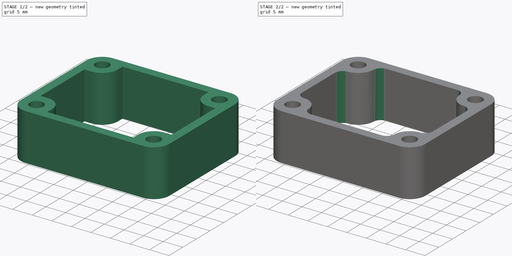
[diagram: build sequence overview — one tinted view per stage of 2, left to right]
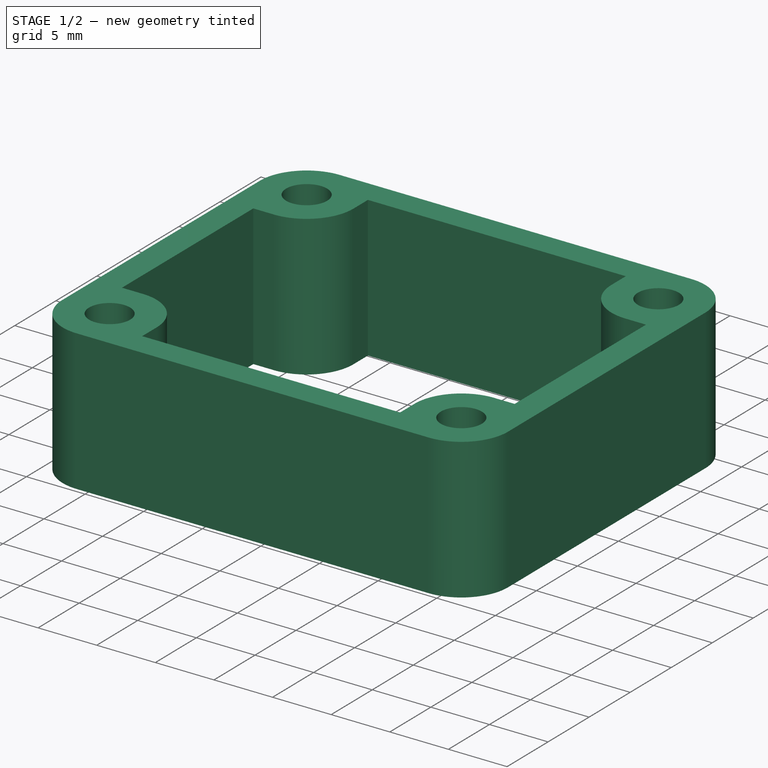
[diagram: stage 1 of 2 — iso view after this stage's code; geometry added in this stage tinted green]
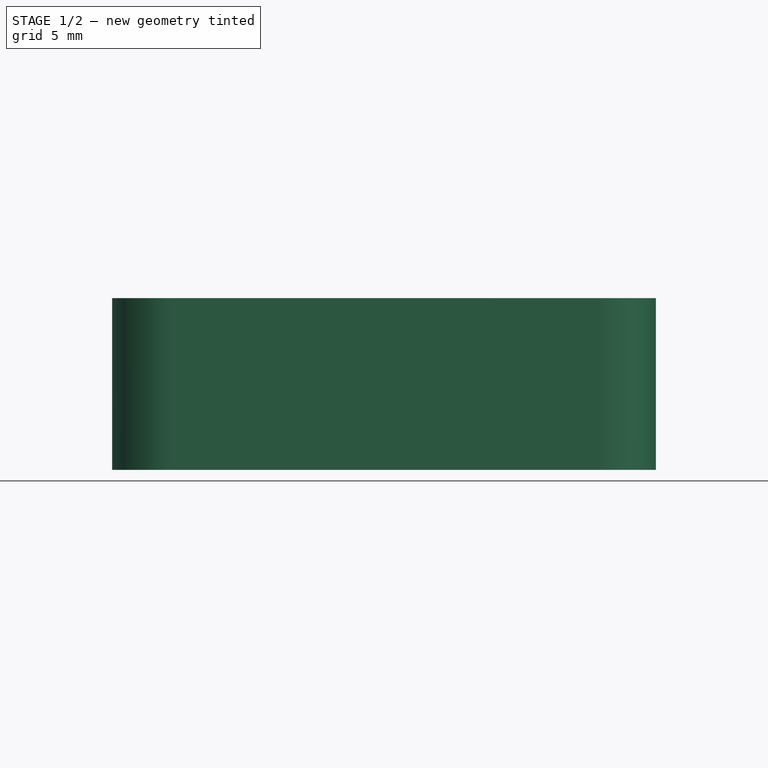
[diagram: stage 1 of 2 — front view after this stage's code; geometry added in this stage tinted green]
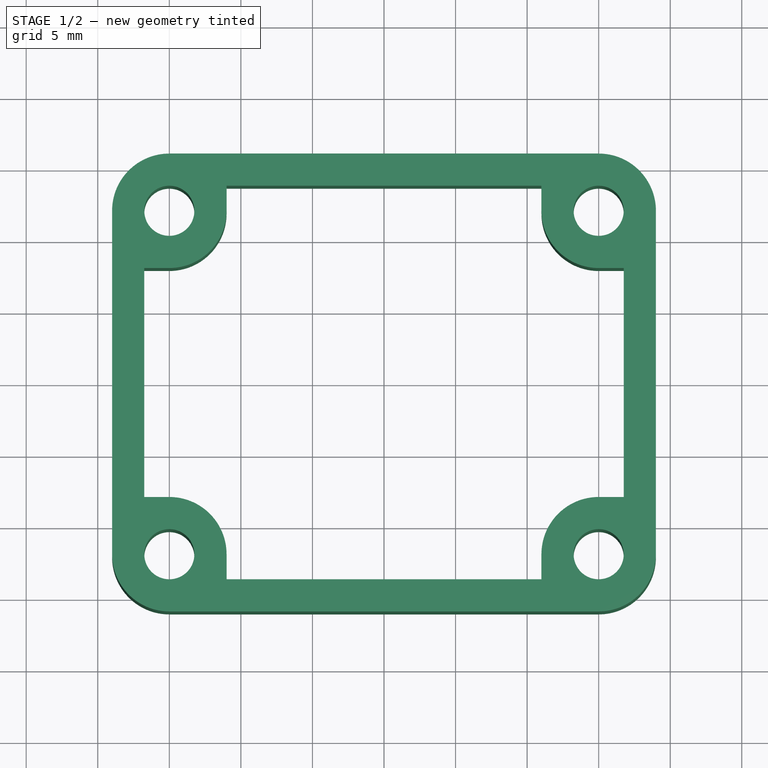
[diagram: stage 1 of 2 — top view after this stage's code; geometry added in this stage tinted green]
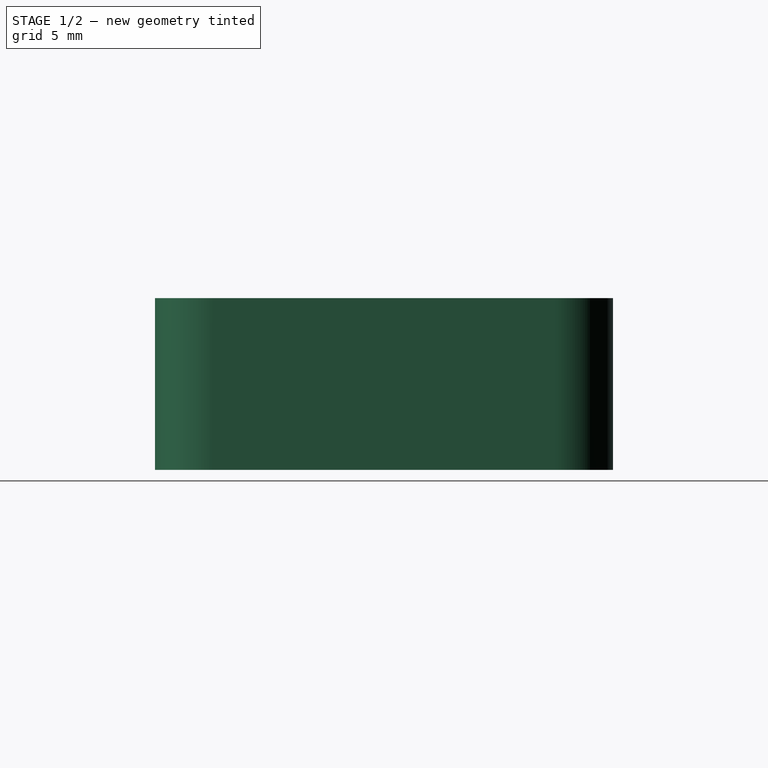
[diagram: stage 1 of 2 — right view after this stage's code; geometry added in this stage tinted green]
FCSTD DOCUMENT  (FreeCAD 0.17R13541 (Git))
Label: Caster_offset_12mm
License: All rights reserved
LicenseURL: http://en.wikipedia.org/wiki/All_rights_reserved
objects: Sketcher::SketchObject×1, PartDesign::Pad×1, PartDesign::Fillet×1, PartDesign::Body×1
note: 5 computed .brp shape members not serialized (recipe doc carries the construction recipe); baked Part::Feature solids carry a one-line shape summary decoded from their .brp

FEATURE [Sketcher::SketchObject] Sketch
  MapMode = 5
  Support = -> [XY_Plane]
  sketch-geometry (32):
    g0: LineSegment [constr] StartX=-15 StartY=12 StartZ=0 EndX=15 EndY=12 EndZ=0
    g1: LineSegment [constr] StartX=15 StartY=12 StartZ=0 EndX=15 EndY=-12 EndZ=0
    g2: LineSegment [constr] StartX=15 StartY=-12 StartZ=0 EndX=-15 EndY=-12 EndZ=0
    g3: LineSegment [constr] StartX=-15 StartY=-12 StartZ=0 EndX=-15 EndY=12 EndZ=0
    g4: LineSegment StartX=-15 StartY=16 StartZ=0 EndX=15 EndY=16 EndZ=0
    g5: LineSegment StartX=19 StartY=12 StartZ=0 EndX=19 EndY=-12 EndZ=0
    g6: LineSegment StartX=15 StartY=-16 StartZ=0 EndX=-15 EndY=-16 EndZ=0
    g7: LineSegment StartX=-19 StartY=-12 StartZ=0 EndX=-19 EndY=12 EndZ=0
    g8: Circle CenterX=-15 CenterY=12 CenterZ=0 NormalX=0 NormalY=0 NormalZ=1 AngleXU=0 Radius=1.75
    g9: Circle CenterX=15 CenterY=12 CenterZ=0 NormalX=0 NormalY=0 NormalZ=1 AngleXU=0 Radius=1.75
    g10: Circle CenterX=15 CenterY=-12 CenterZ=0 NormalX=0 NormalY=0 NormalZ=1 AngleXU=0 Radius=1.75
    g11: Circle CenterX=-15 CenterY=-12 CenterZ=0 NormalX=0 NormalY=0 NormalZ=1 AngleXU=0 Radius=1.75
    g12: ArcOfCircle CenterX=-15 CenterY=12 CenterZ=0 NormalX=0 NormalY=0 NormalZ=1 AngleXU=0 Radius=4 StartAngle=1.5708 EndAngle=3.14159
    g13: ArcOfCircle CenterX=15 CenterY=12 CenterZ=0 NormalX=0 NormalY=0 NormalZ=1 AngleXU=0 Radius=4 StartAngle=0 EndAngle=1.5708
    g14: ArcOfCircle CenterX=15 CenterY=-12 CenterZ=0 NormalX=0 NormalY=0 NormalZ=1 AngleXU=0 Radius=4 StartAngle=4.71239 EndAngle=6.28319
    g15: ArcOfCircle CenterX=-15 CenterY=-12 CenterZ=0 NormalX=0 NormalY=0 NormalZ=1 AngleXU=0 Radius=4 StartAngle=3.14159 EndAngle=4.71239
    g16: LineSegment StartX=-16.75 StartY=8 StartZ=0 EndX=-15 EndY=8 EndZ=0
    g17: LineSegment StartX=-11 StartY=12 StartZ=0 EndX=-11 EndY=13.75 EndZ=0
    g18: ArcOfCircle CenterX=-15 CenterY=12 CenterZ=0 NormalX=0 NormalY=0 NormalZ=1 AngleXU=0 Radius=4 StartAngle=4.71239 EndAngle=6.28319
    g19: LineSegment StartX=-16.75 StartY=-8 StartZ=0 EndX=-15 EndY=-8 EndZ=0
    g20: LineSegment StartX=-11 StartY=-12 StartZ=0 EndX=-11 EndY=-13.75 EndZ=0
    g21: LineSegment StartX=11 StartY=-13.75 StartZ=0 EndX=11 EndY=-12 EndZ=0
    g22: LineSegment StartX=15 StartY=-8 StartZ=0 EndX=16.75 EndY=-8 EndZ=0
    g23: LineSegment StartX=11 StartY=13.75 StartZ=0 EndX=11 EndY=12 EndZ=0
    g24: LineSegment StartX=15 StartY=8 StartZ=0 EndX=16.75 EndY=8 EndZ=0
    g25: ArcOfCircle CenterX=15 CenterY=12 CenterZ=0 NormalX=0 NormalY=0 NormalZ=1 AngleXU=0 Radius=4 StartAngle=3.14159 EndAngle=4.71239
    g26: ArcOfCircle CenterX=15 CenterY=-12 CenterZ=0 NormalX=0 NormalY=0 NormalZ=1 AngleXU=0 Radius=4 StartAngle=1.5708 EndAngle=3.14159
    g27: ArcOfCircle CenterX=-15 CenterY=-12 CenterZ=0 NormalX=0 NormalY=0 NormalZ=1 AngleXU=0 Radius=4 StartAngle=0 EndAngle=1.5708
    g28: LineSegment StartX=-11 StartY=13.75 StartZ=0 EndX=11 EndY=13.75 EndZ=0
    g29: LineSegment StartX=16.75 StartY=8 StartZ=0 EndX=16.75 EndY=-8 EndZ=0
    g30: LineSegment StartX=11 StartY=-13.75 StartZ=0 EndX=-11 EndY=-13.75 EndZ=0
    g31: LineSegment StartX=-16.75 StartY=-8 StartZ=0 EndX=-16.75 EndY=8 EndZ=0
  constraints (82):
    c: Coincident(g0,g1)
    c: Coincident(g1,g2)
    c: Coincident(g2,g3)
    c: Coincident(g3,g0)
    c: Horizontal(g0)
    c: Horizontal(g2)
    c: Vertical(g1)
    c: Vertical(g3)
    c: Horizontal(g4)
    c: Horizontal(g6)
    c: Vertical(g5)
    c: Vertical(g7)
    c: Coincident(g8,g0)
    c: Coincident(g9,g0)
    c: Coincident(g10,g1)
    c: Coincident(g11,g2)
    c: Equal(g11,g8)
    c: Equal(g8,g9)
    c: Equal(g9,g10)
    c: Symmetric(g2,g1,g-2)
    c: Symmetric(g2,g0,g-1)
    c: DistanceY(g3,g3) = 24
    c: DistanceX(g0,g0) = 30
    c: Radius(g9) = 1.75
    c: Tangent(g7,g12) = 1.5708
    c: Tangent(g4,g12) = 1.5708
    c: Tangent(g4,g13) = 1.5708
    c: Tangent(g5,g13) = 1.5708
    c: Tangent(g6,g14) = 1.5708
    c: Tangent(g5,g14) = 1.5708
    c: Tangent(g7,g15) = 1.5708
    c: Tangent(g6,g15) = 1.5708
    c: Equal(g12,g15)
    c: Equal(g15,g14)
    c: Equal(g14,g13)
    c: Radius(g12) = 4
    c: Coincident(g15,g2)
    c: Coincident(g0,g13)
    c: Horizontal(g16)
    c: Vertical(g17)
    c: Tangent(g16,g18) = -1.5708
    c: Tangent(g17,g18) = -1.5708
    c: Radius(g18) = 4
    c: Coincident(g18,g0)
    c: Horizontal(g19)
    c: Vertical(g20)
    c: Vertical(g21)
    c: Horizontal(g22)
    c: Vertical(g23)
    c: Horizontal(g24)
    c: Tangent(g23,g25) = -1.5708
    c: Tangent(g24,g25) = -1.5708
    c: Tangent(g21,g26) = 1.5708
    c: Tangent(g22,g26) = 1.5708
    c: Tangent(g19,g27) = 1.5708
    c: Tangent(g20,g27) = 1.5708
    c: Equal(g18,g27)
    c: Equal(g27,g25)
    c: Equal(g25,g26)
    c: Coincident(g26,g1)
    c: Coincident(g25,g0)
    c: Coincident(g2,g27)
    c: Coincident(g31,g16)
    c: Coincident(g28,g17)
    c: PointOnObject(g28,g23)
    c: Coincident(g29,g24)
    c: PointOnObject(g29,g22)
    c: PointOnObject(g30,g21)
    c: Coincident(g31,g19)
    c: PointOnObject(g30,g20)
    c: Equal(g19,g22)
    c: DistanceX(g19,g22) = 33.5
    c: DistanceY(g20,g17) = 27.5
    c: Equal(g16,g24)
    c: Equal(g19,g16)
    c: Equal(g20,g21)
    c: Equal(g21,g23)
    c: Equal(g23,g17)
    c: Coincident(g28,g23)
    c: Coincident(g29,g22)
    c: Coincident(g30,g20)
    c: Coincident(g30,g21)
FEATURE [PartDesign::Pad] Pad
  Length = 12
  Length2 = 100
  Profile = -> Sketch
  Type = 0
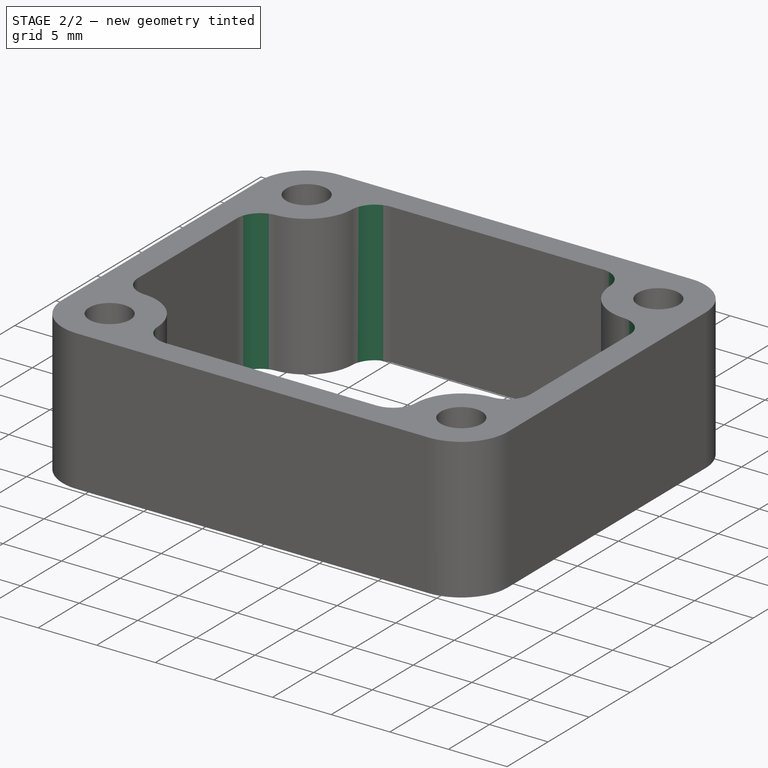
[diagram: stage 2 of 2 — iso view after this stage's code; geometry added in this stage tinted green]
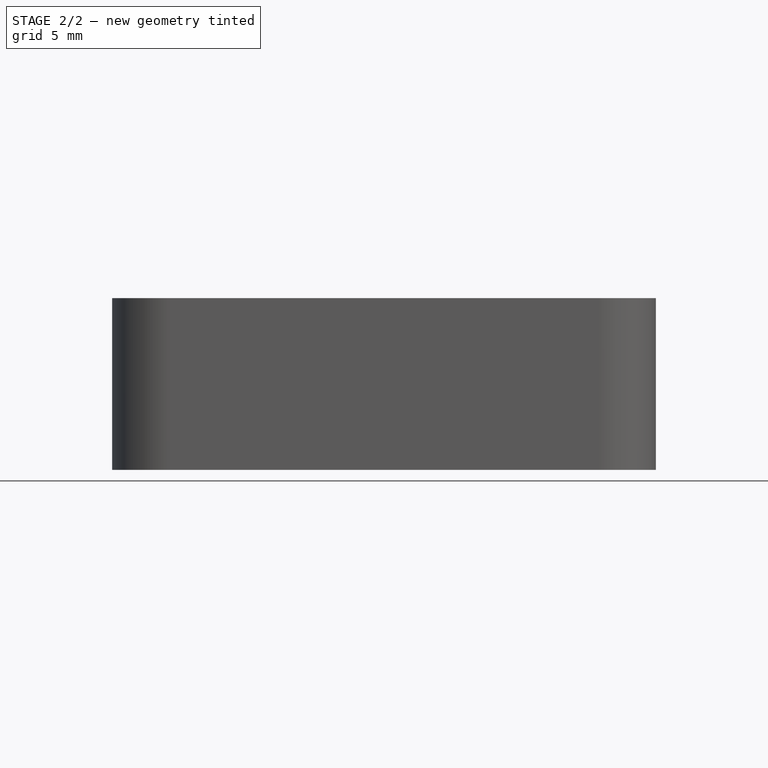
[diagram: stage 2 of 2 — front view after this stage's code; geometry added in this stage tinted green]
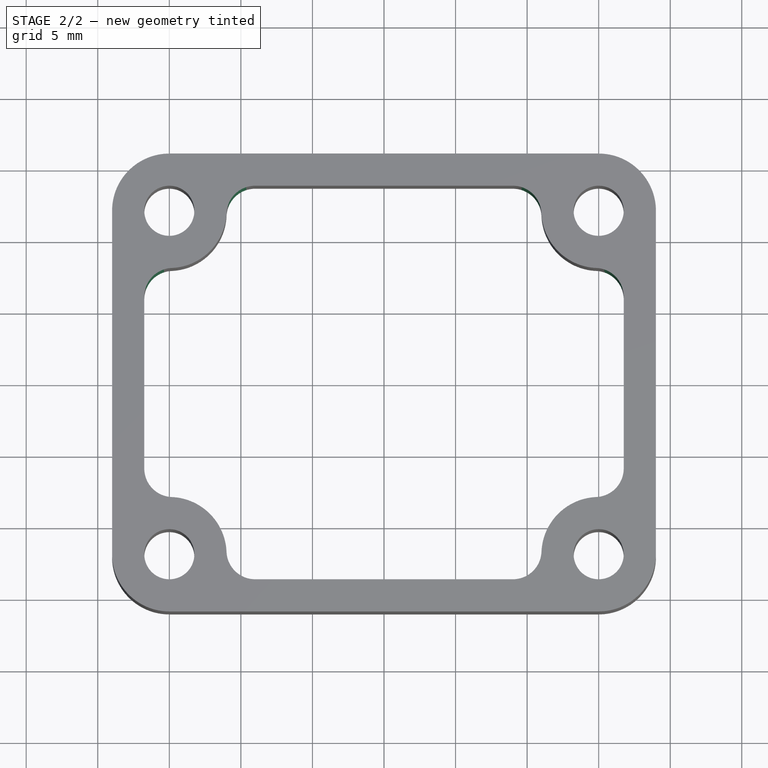
[diagram: stage 2 of 2 — top view after this stage's code; geometry added in this stage tinted green]
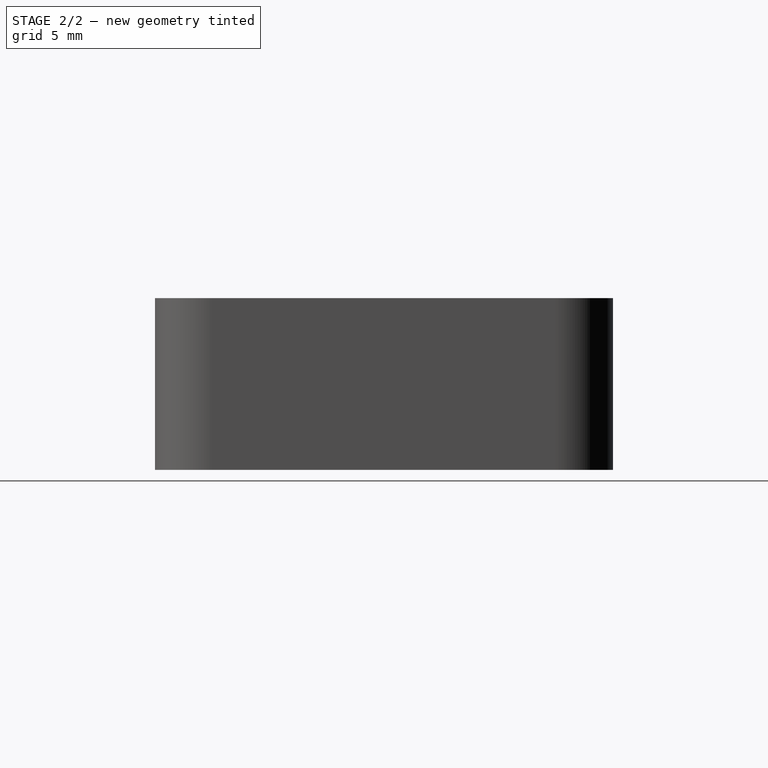
[diagram: stage 2 of 2 — right view after this stage's code; geometry added in this stage tinted green]
FEATURE [PartDesign::Fillet] Fillet
  Base = -> Pad [Edge59,Edge68,Edge56,Edge47,Edge44,Edge35,Edge32,Edge25]
  BaseFeature = -> Pad
  Radius = 2
FEATURE [PartDesign::Body] Body
  Group = -> [Sketch,Pad,Fillet]
  Origin = -> Origin
  Tip = -> Fillet
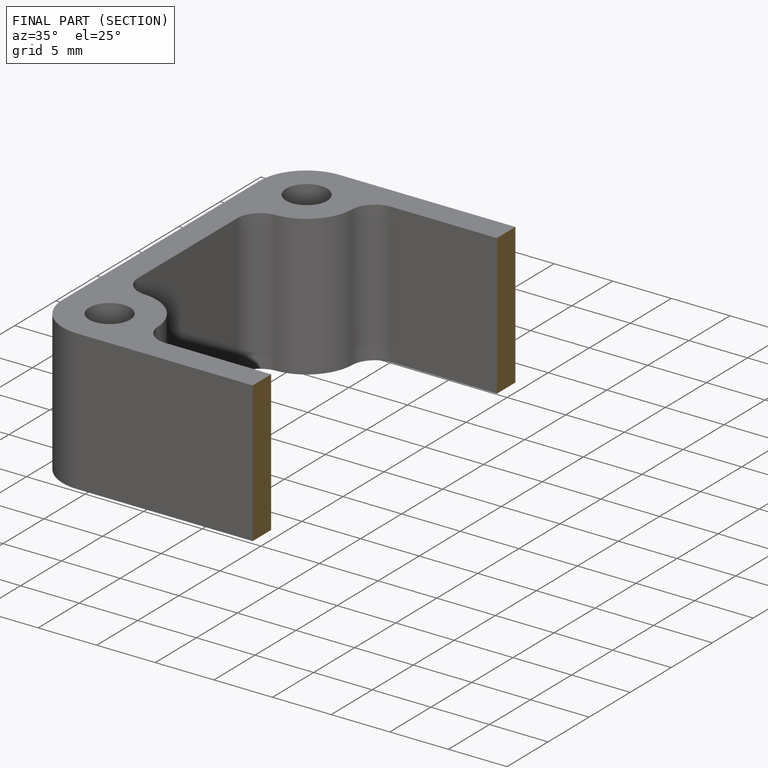
[diagram: finished part — half-section view (interior)]
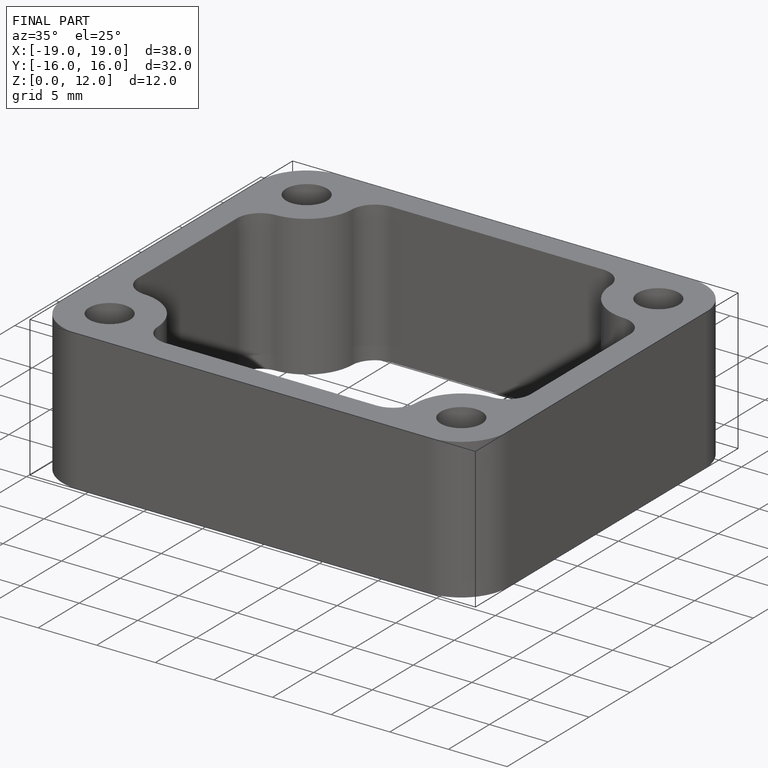
[diagram: finished part — iso view with bounding-box wireframe]
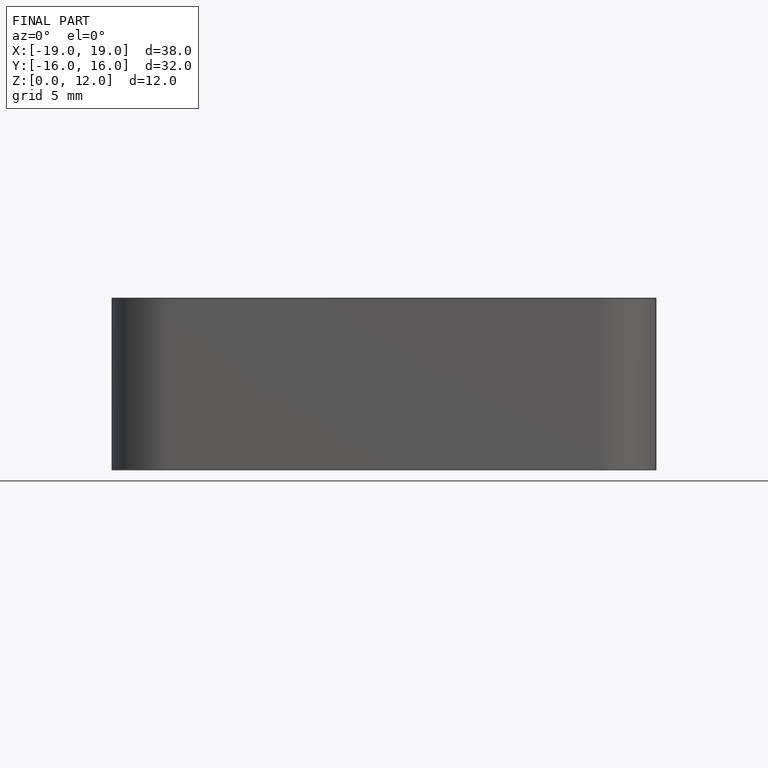
[diagram: finished part — front view with bounding-box wireframe]
